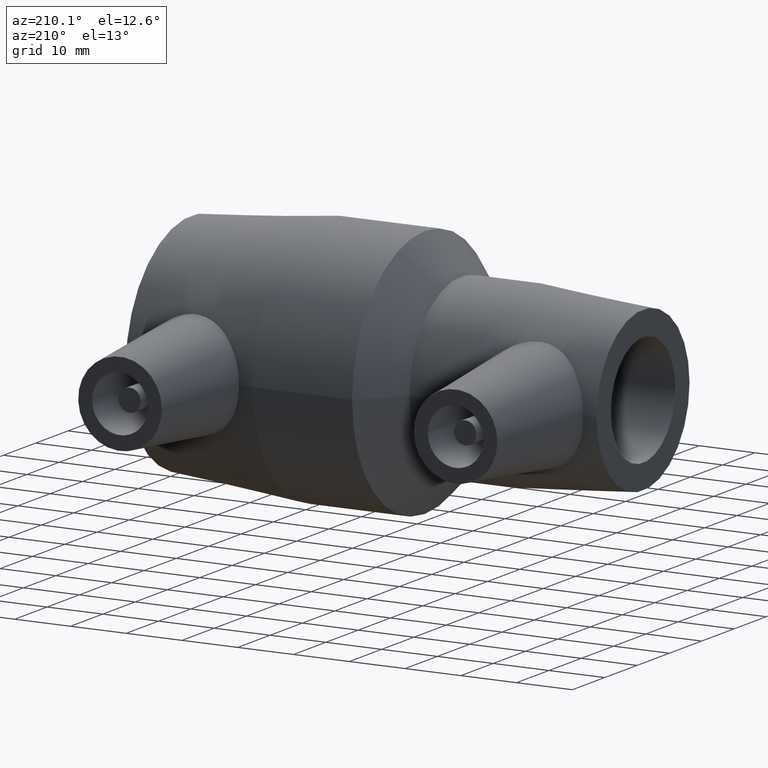
[diagram: clean part render]
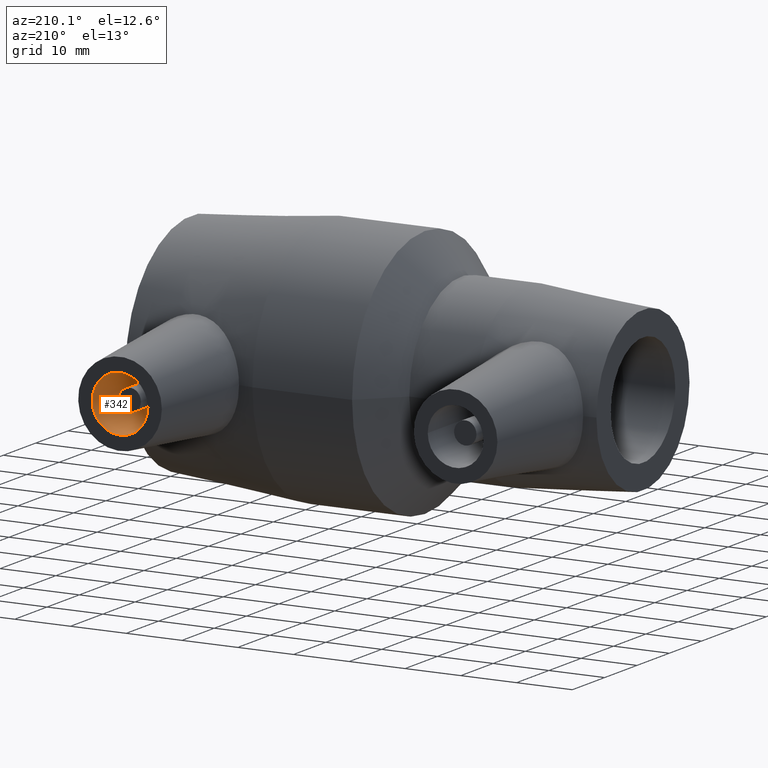
[diagram: same view with one face highlighted and labeled with its STEP entity id]
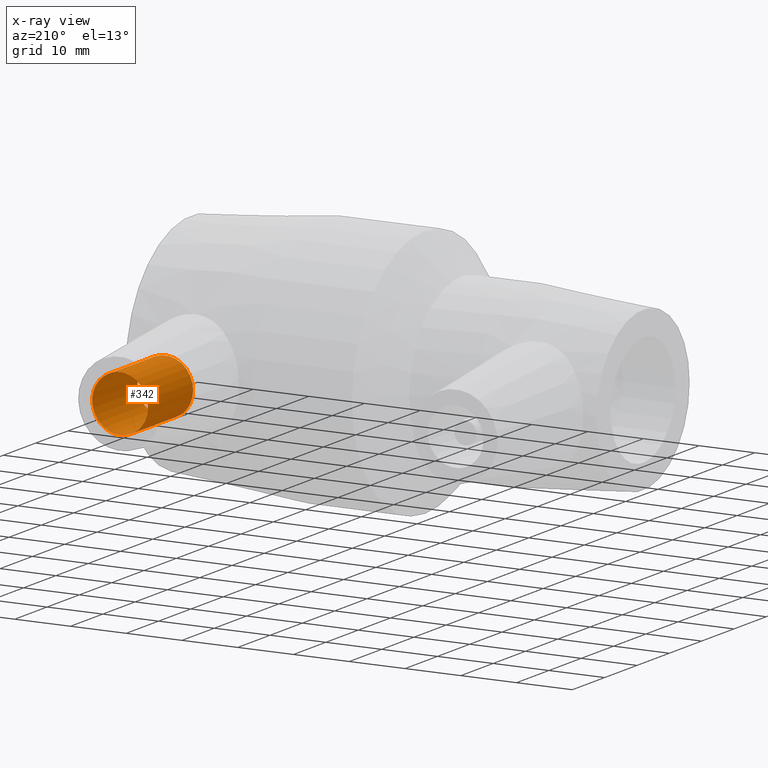
[diagram: x-ray of the same camera — body ghosted, the highlighted face saturated]
A machine part, auxiliary view. The second image highlights one B-rep face of the part: STEP entity #342.
The next image is the same camera in x-ray: the body ghosted, the highlighted face saturated — about 1% of this face is hidden behind the body in this view.
In plain terms, the highlighted cylindrical surface (bore or boss wall) has radius 5 mm, axis along (0, -1, 0).
Its self-contained STEP definition (entity closure, byte-faithful):
#29=FACE_BOUND('',#106,.T.);
#59=CYLINDRICAL_SURFACE('',#379,5.);
#72=FACE_OUTER_BOUND('',#105,.T.);
#105=EDGE_LOOP('',(#263));
#106=EDGE_LOOP('',(#264));
#166=CIRCLE('',#380,5.);
#167=CIRCLE('',#381,5.);
#196=VERTEX_POINT('',#572);
#197=VERTEX_POINT('',#574);
#228=EDGE_CURVE('',#196,#196,#166,.T.);
#229=EDGE_CURVE('',#197,#197,#167,.T.);
#263=ORIENTED_EDGE('',*,*,#228,.T.);
#264=ORIENTED_EDGE('',*,*,#229,.F.);
#342=ADVANCED_FACE('',(#72,#29),#59,.F.);
#379=AXIS2_PLACEMENT_3D('',#571,#449,#450);
#380=AXIS2_PLACEMENT_3D('',#573,#451,#452);
#381=AXIS2_PLACEMENT_3D('',#575,#453,#454);
#449=DIRECTION('center_axis',(0.,-1.,0.));
#450=DIRECTION('ref_axis',(1.,0.,0.));
#451=DIRECTION('center_axis',(0.,-1.,0.));
#452=DIRECTION('ref_axis',(1.,0.,0.));
#453=DIRECTION('center_axis',(0.,-1.,0.));
#454=DIRECTION('ref_axis',(1.,0.,0.));
#571=CARTESIAN_POINT('Origin',(28.35,43.,0.));
#572=CARTESIAN_POINT('',(23.35,29.,6.12323399573677E-16));
#573=CARTESIAN_POINT('Origin',(28.35,29.,0.));
#574=CARTESIAN_POINT('',(23.35,43.,6.12323399573677E-16));
#575=CARTESIAN_POINT('Origin',(28.35,43.,0.));